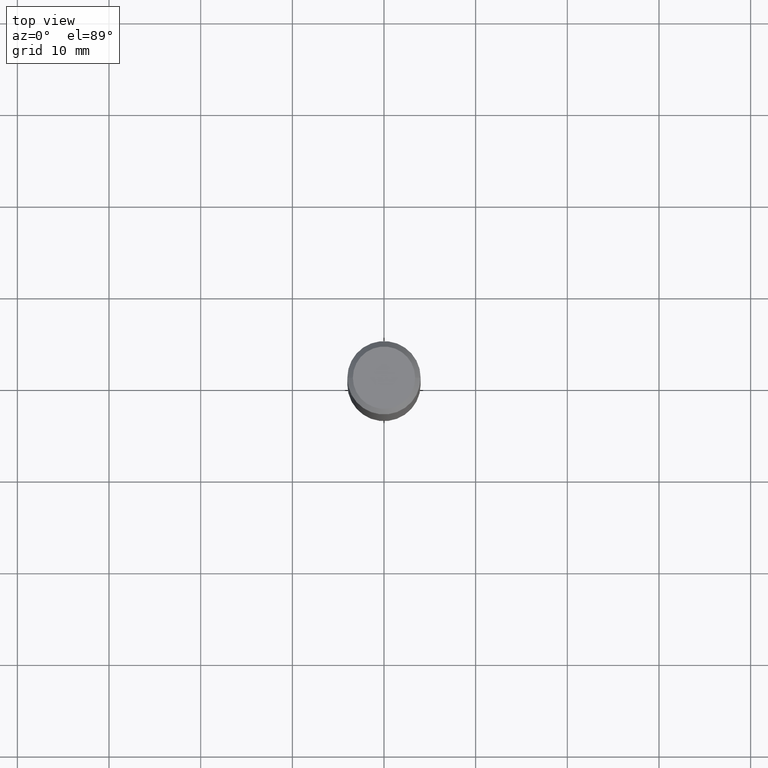
[diagram: clean part render]
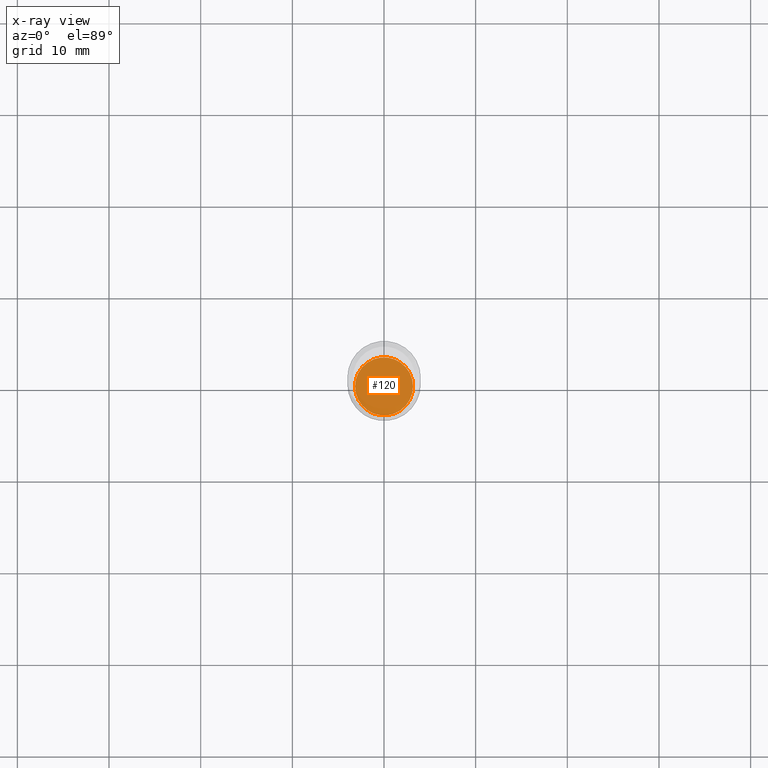
[diagram: x-ray — body ghosted, one internal face saturated and labeled with its STEP entity id]
A machine part, top view, then the same camera in x-ray: the body is ghosted and one INTERNAL B-rep face — a face not visible from any outside direction — is saturated and labeled: STEP entity #120.
In plain terms, the highlighted planar face has unit normal (-0, 0, 1).
Its self-contained STEP definition (entity closure, byte-faithful):
#13 = DIRECTION ( 'NONE',  ( 1.000000000000000000, -6.982962677686266711E-15, 0.000000000000000000 ) ) ;
#19 = CARTESIAN_POINT ( 'NONE',  ( 5.295173606032675561E-29, -7.560104542997063911E-15, -2.165299999999999780 ) ) ;
#20 = CARTESIAN_POINT ( 'NONE',  ( 5.295173606032675561E-29, -7.560104542997063911E-15, -2.165299999999999780 ) ) ;
#22 = AXIS2_PLACEMENT_3D ( 'NONE', #466, #161, #13 ) ;
#30 = CIRCLE ( 'NONE', #340, 0.1244999999999999996 ) ;
#63 = DIRECTION ( 'NONE',  ( 1.000000000000000000, -6.982962677686266711E-15, 0.000000000000000000 ) ) ;
#88 = ORIENTED_EDGE ( 'NONE', *, *, #92, .F. ) ;
#92 = EDGE_CURVE ( 'NONE', #194, #342, #140, .T. ) ;
#120 = ADVANCED_FACE ( 'NONE', ( #374 ), #242, .F. ) ;
#140 = CIRCLE ( 'NONE', #22, 0.1244999999999999996 ) ;
#161 = DIRECTION ( 'NONE',  ( -2.445468806185136597E-29, 3.491481338843145583E-15, 1.000000000000000000 ) ) ;
#194 = VERTEX_POINT ( 'NONE', #290 ) ;
#242 = PLANE ( 'NONE',  #314 ) ;
#246 = EDGE_CURVE ( 'NONE', #342, #194, #30, .T. ) ;
#290 = CARTESIAN_POINT ( 'NONE',  ( -0.1244999999999999996, -6.672829609801627587E-15, -2.165299999999999780 ) ) ;
#291 = DIRECTION ( 'NONE',  ( 1.000000000000000000, -6.982962677686265922E-15, 4.876176775795935793E-29 ) ) ;
#300 = ORIENTED_EDGE ( 'NONE', *, *, #246, .F. ) ;
#314 = AXIS2_PLACEMENT_3D ( 'NONE', #20, #429, #291 ) ;
#338 = DIRECTION ( 'NONE',  ( -2.445468806185136597E-29, 3.491481338843145583E-15, 1.000000000000000000 ) ) ;
#340 = AXIS2_PLACEMENT_3D ( 'NONE', #19, #338, #63 ) ;
#342 = VERTEX_POINT ( 'NONE', #423 ) ;
#374 = FACE_OUTER_BOUND ( 'NONE', #452, .T. ) ;
#423 = CARTESIAN_POINT ( 'NONE',  ( 0.1244999999999999996, -8.429483396369002665E-15, -2.165299999999999780 ) ) ;
#429 = DIRECTION ( 'NONE',  ( -2.438088387897960049E-29, 3.491481338843145188E-15, 1.000000000000000000 ) ) ;
#452 = EDGE_LOOP ( 'NONE', ( #300, #88 ) ) ;
#466 = CARTESIAN_POINT ( 'NONE',  ( 5.295173606032675561E-29, -7.560104542997063911E-15, -2.165299999999999780 ) ) ;